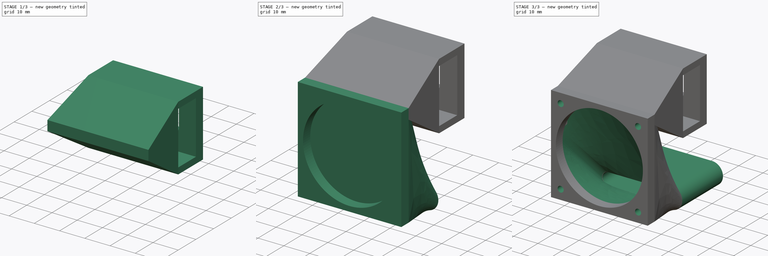
[diagram: build sequence overview — one tinted view per stage of 3, left to right]
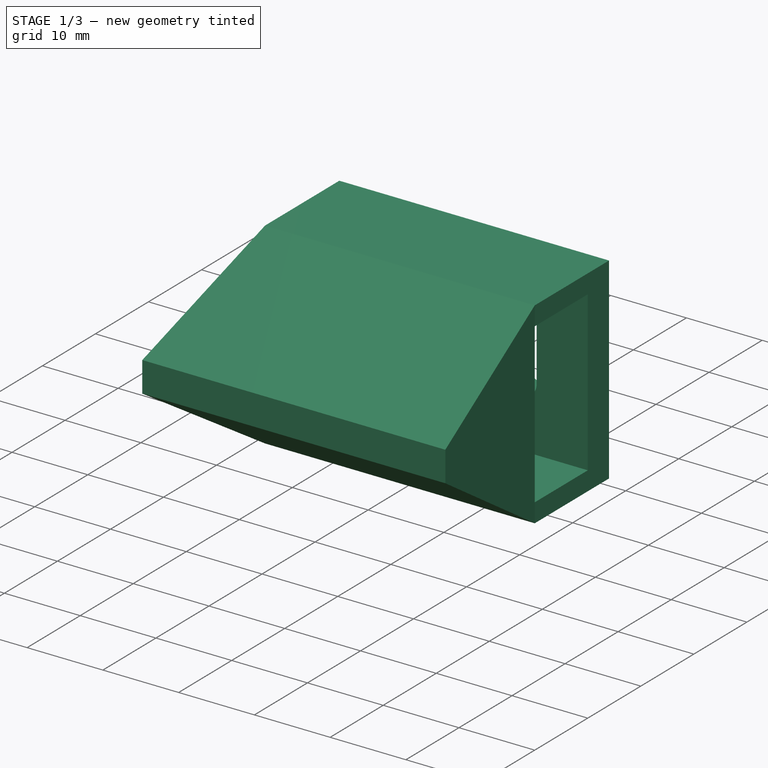
[diagram: stage 1 of 3 — iso view after this stage's code; geometry added in this stage tinted green]
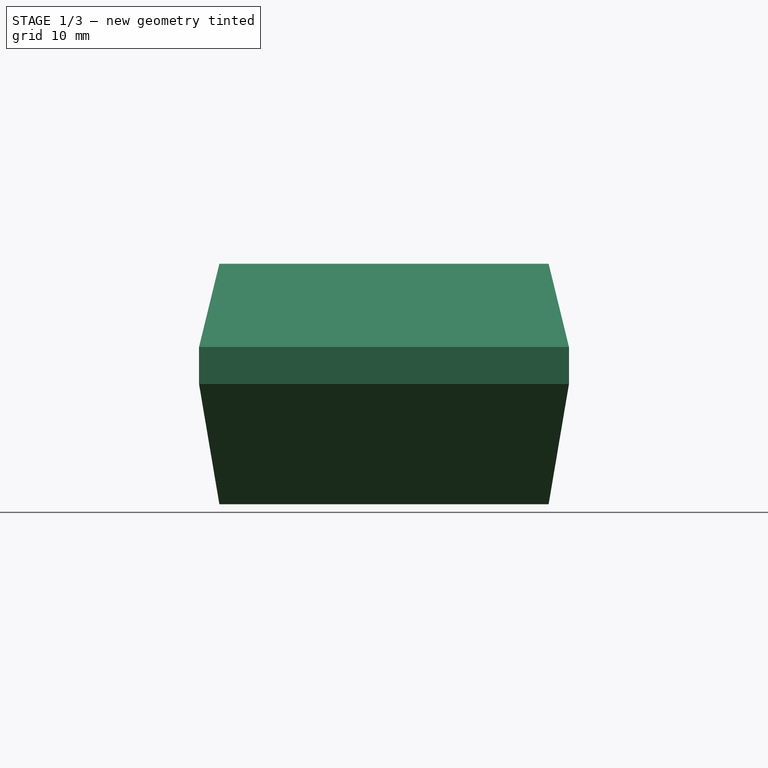
[diagram: stage 1 of 3 — front view after this stage's code; geometry added in this stage tinted green]
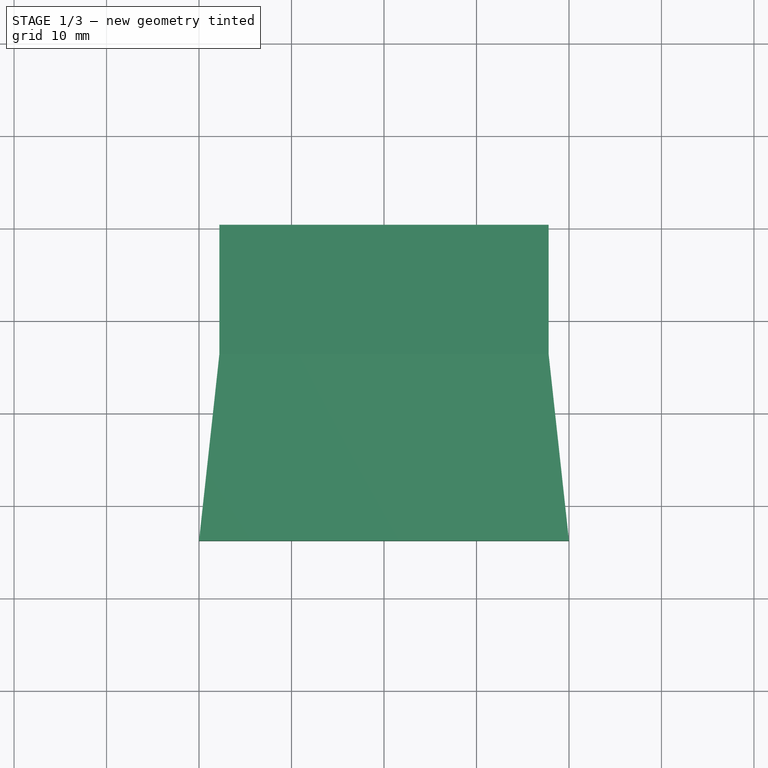
[diagram: stage 1 of 3 — top view after this stage's code; geometry added in this stage tinted green]
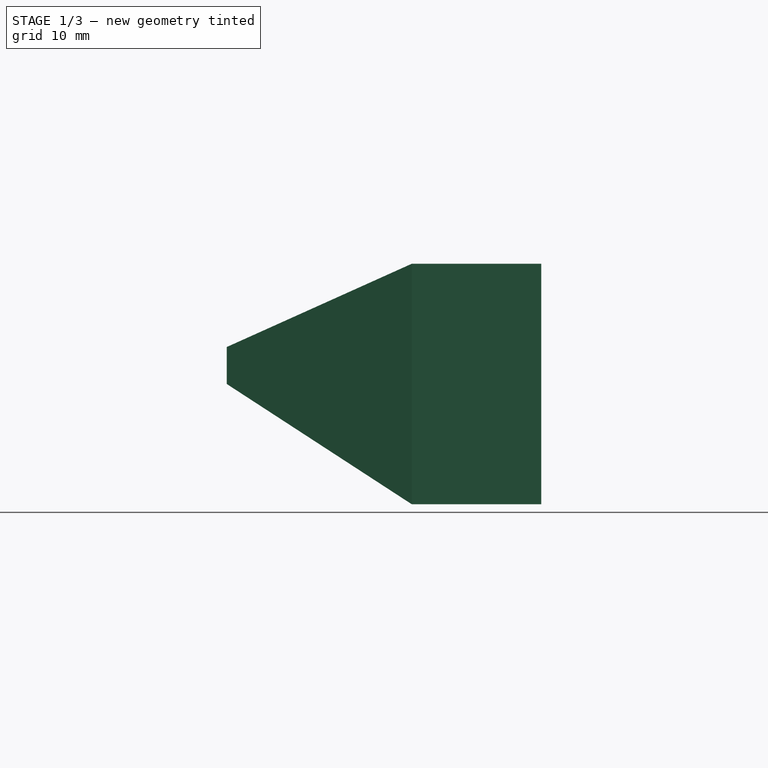
[diagram: stage 1 of 3 — right view after this stage's code; geometry added in this stage tinted green]
FCSTD DOCUMENT  (FreeCAD 0.19R24267 (Git))
Label: FanFunnel
License: All rights reserved
LicenseURL: http://en.wikipedia.org/wiki/All_rights_reserved
objects: Sketcher::SketchObject×11, Spreadsheet::Sheet×4, PartDesign::Pad×4, PartDesign::AdditiveLoft×2, PartDesign::SubtractiveLoft×1, PartDesign::Pocket×1, PartDesign::Body×1
note: 28 computed .brp shape members not serialized (recipe doc carries the construction recipe); baked Part::Feature solids carry a one-line shape summary decoded from their .brp

FEATURE [Sketcher::SketchObject] Sketch  label="Sketch_mountPad"
  FullyConstrained = true
  MapMode = 5
  Placement = pos=(0,0,0) rot=(1,0,0;1.5708rad)
  Support = -> [XZ_Plane]
  expr: Constraints[20] = <<M3>>.M3ThreadThroughholeRadius
  expr: Constraints[21] = <<M3>>.M3ThreadThroughholeRadius
  expr: Constraints[25] = <<Dimensions>>.FanHolderHeight + <<Dimensions>>.HolderHeight
  expr: Constraints[30] = <<Dimensions>>.FanHolderwidth / 2
  expr: Constraints[31] = <<Dimensions>>.HolderBaseToHotheadBottom + <<Dimensions>>.HotheadBottomToHeadTip
  expr: Constraints[22] = <<Dimensions>>.FanFunnelMountScrewHoleHeight
  expr: Constraints[27] = <<Dimensions>>.FanFunnelMountScrewHoleBottomHeight
  expr: Constraints[23] = <<Dimensions>>.FanFunnelMountScrewHoleHeight
  expr: Constraints[24] = <<Dimensions>>.FanHolderwidth
  expr: Constraints[26] = <<Dimensions>>.FanMountSupportWidth + <<M3>>.M3HeadRadius
  expr: Constraints[29] = <<Dimensions>>.FanHolderwidth - <<Dimensions>>.FanMountSupportWidth * 2 - <<M3>>.M3HeadRadius * 2
  expr: Constraints[37] = <<Dimensions>>.FanHolderwidth / 2
  expr: Constraints[35] = <<Dimensions>>.PrintheadMarkerRadius
  sketch-geometry (15):
    g0: LineSegment StartX=-17.8 StartY=59 StartZ=0 EndX=17.8 EndY=59 EndZ=0
    g1: LineSegment StartX=17.8 StartY=59 StartZ=0 EndX=17.8 EndY=33 EndZ=0
    g2: LineSegment StartX=17.8 StartY=33 StartZ=0 EndX=1 EndY=33 EndZ=0
    g3: LineSegment StartX=-17.8 StartY=33 StartZ=0 EndX=-17.8 EndY=59 EndZ=0
    g4: ArcOfCircle CenterX=-9.05 CenterY=54 CenterZ=0 NormalX=0 NormalY=0 NormalZ=1 AngleXU=0 Radius=2 StartAngle=2e-16 EndAngle=3.14159
    g5: ArcOfCircle CenterX=-9.05 CenterY=44 CenterZ=0 NormalX=0 NormalY=0 NormalZ=1 AngleXU=0 Radius=2 StartAngle=3.14159 EndAngle=6.28319
    g6: LineSegment StartX=-11.05 StartY=54 StartZ=0 EndX=-11.05 EndY=44 EndZ=0
    g7: LineSegment StartX=-7.05 StartY=54 StartZ=0 EndX=-7.05 EndY=44 EndZ=0
    g8: ArcOfCircle CenterX=9.05 CenterY=54 CenterZ=0 NormalX=0 NormalY=0 NormalZ=1 AngleXU=0 Radius=2 StartAngle=2e-16 EndAngle=3.14159
    g9: ArcOfCircle CenterX=9.05 CenterY=44 CenterZ=0 NormalX=0 NormalY=0 NormalZ=1 AngleXU=0 Radius=2 StartAngle=3.14159 EndAngle=6.28319
    g10: LineSegment StartX=7.05 StartY=54 StartZ=0 EndX=7.05 EndY=44 EndZ=0
    g11: LineSegment StartX=11.05 StartY=54 StartZ=0 EndX=11.05 EndY=44 EndZ=0
    g12: ArcOfCircle CenterX=-1.5e-15 CenterY=33 CenterZ=0 NormalX=0 NormalY=0 NormalZ=1 AngleXU=0 Radius=1 StartAngle=-9e-16 EndAngle=3.14159
    g13: LineSegment StartX=-1 StartY=33 StartZ=0 EndX=1 EndY=33 EndZ=0
    g14: LineSegment StartX=-1 StartY=33 StartZ=0 EndX=-17.8 EndY=33 EndZ=0
  constraints (42):
    c: Coincident(g0,g1)
    c: Coincident(g1,g2)
    c: Coincident(g14,g3)
    c: Coincident(g3,g0)
    c: Horizontal(g0)
    c: Horizontal(g2)
    c: Vertical(g1)
    c: Vertical(g3)
    c: Tangent(g4,g7) = 1.5708
    c: Tangent(g4,g6) = -1.5708
    c: Tangent(g6,g5) = -1.5708
    c: Tangent(g7,g5) = 1.5708
    c: Vertical(g6)
    c: Equal(g4,g5)
    c: Tangent(g8,g11) = 1.5708
    c: Tangent(g8,g10) = -1.5708
    c: Tangent(g10,g9) = -1.5708
    c: Tangent(g11,g9) = 1.5708
    c: Vertical(g10)
    c: Equal(g8,g9)
    c: Radius(g9) = 2
    c: Radius(g5) = 2
    c: DistanceY(g5,g4) = 10
    c: DistanceY(g9,g8) = 10
    c: DistanceX(g14,g1) = 35.6
    c: DistanceY(g1,g1) = 26
    c: DistanceX(g9,g1) = 8.75
    c: DistanceY(g1,g9) = 11
    c: Horizontal(g9,g5)
    c: DistanceX(g5,g9) = 18.1
    c: DistanceX(g-1,g1) = 17.8
    c: DistanceY(g-1,g1) = 33
    c: Coincident(g13,g12)
    c: Coincident(g13,g12)
    c: Horizontal(g13)
    c: Radius(g12) = 1
    c: Horizontal(g12,g12)
    c: DistanceX(g12,g1) = 17.8
    c: Horizontal(g12,g1)
    c: PointOnObject(g2,g12)
    c: PointOnObject(g14,g12)
    c: Tangent(g2,g14)
FEATURE [Spreadsheet::Sheet] Spreadsheet  label="M3"
  cells = A1=M3ThreadRadius; B1(M3ThreadRadius)==1.25mm; A2=M3HeadRadius; B2(M3HeadRadius)==2.75mm; A3=M3HeadHeight; B3(M3HeadHeight)==3mm; A4=M3NutFlatToFlat_S; B4(M3NutFlatToFlat_S)==5.5mm; A5=M3NutThickness; B5(M3NutThickness)==2.4mm; A6=M3ThreadThroughholeRadius; B6(M3ThreadThroughholeRadius)==2mm
FEATURE [Spreadsheet::Sheet] Spreadsheet001  label="Nema17"
  cells = A1=BodyWidth; B1(BodyWidth)==42.3mm; A2=BodyLength; B2(BodyLength)==42.3mm; A3=BodyHeight34mm; B3(BodyHeight34mm)==34mm; A4=ScrewSeparation; B4(ScrewSeparation)==31mm; A5=DamperSupportHeight; B5(DamperSupportHeight)==2mm; A6=DamperSupportDiameter; B6(DamperSupportDiameter)==22mm; A7=ShaftLength; B7(ShaftLength)==24mm; A8=ShaftDiameter; B8(ShaftDiameter)==5mm; A9=PlugHeight; B9(PlugHeight)==12mm; A10=PlugWidth; B10(PlugWidth)==16mm; A11=PlugLength; B11(PlugLength)==6.5mm; A12=BodyInsideTaper; B12(BodyInsideTaper)==34mm
FEATURE [Spreadsheet::Sheet] Spreadsheet003  label="Dimensions"
  cells = A1=HolderDepth; B1(HolderDepth)==60mm; A2=HolderDepthToSlope; B2(HolderDepthToSlope)==(HolderDepth - ScrewDomeRadius - <<Nema17>>.ScrewSeparation) / 2; A3=HolderHeight; B3(HolderHeight)==6mm; A4=HolderHeightUnderRadiator; B4(HolderHeightUnderRadiator)==4mm; A5=HolderHeightToScrewholeCentre; B5(HolderHeightToScrewholeCentre)==9mm; A6=HolderWidth; B6(HolderWidth)==10mm; A7=ScrewDomeRadius; B7(ScrewDomeRadius)==3.5mm; A8=FanHolderHeight; B8(FanHolderHeight)==20mm; A9=FanHolderDepth; B9(FanHolderDepth)==4mm; A10=FanHolderwidth; B10(FanHolderwidth)==(HolderWidth + PrintheadToGrabberRight - FanMountShiftFromSide) * 2; A11=GrabberDepth; B11(GrabberDepth)==18mm; A12=GrabberLength; B12(GrabberLength)==54mm; A13=ProbeHolderOuterRadius; B13(ProbeHolderOuterRadius)==14mm; A14=ProbeHolderToGrabberRight; B14(ProbeHolderToGrabberRight)==GrabberLength - ProbeHolderOuterRadius + (ProbeHolderOuterRadius - ProbeHolderInnerRadius) / 2; A15=ProbeHolderToGrabberDepth; B15(ProbeHolderToGrabberDepth)==GrabberDepth; A16=ProbeHolderInnerRadius; B16(ProbeHolderInnerRadius)==10mm; A17=ProbeHolderHeight; B17(ProbeHolderHeight)==13mm; A18=FanMountScrewHeightFromFront; B18(FanMountScrewHeightFromFront)==15mm; A19=FanMountScrew1FromSide; B19(FanMountScrew1FromSide)==HolderWidth - FanMountShiftFromSide - FanMountSupportWidth - <<M3>>.M3HeadRadius; A20=FanMountScrew2FromSide; B20(FanMountScrew2FromSide)==HolderWidth - FanHolderwidth + FanMountSupportWidth + <<M3>>.M3HeadRadius - FanMountShiftFromSide; A21=PrintheadToHolderBack; B21(PrintheadToHolderBack)==25mm; A22=PrintheadMarkerRadius; B22(PrintheadMarkerRadius)==1mm; A23=PrintheadToGrabberRight; B23(PrintheadToGrabberRight)==20mm - HolderWidth; A24=PrintheadMarkerDepth; B24(PrintheadMarkerDepth)==1mm; A25=FanMountSupportDepth; B25(FanMountSupportDepth)==HolderDepth - HolderDepthToSlope; A26=FanMountSupportHeight; B26(FanMountSupportHeight)==FanHolderHeight / 2; A27=FanMountSupportWidth; B27(FanMountSupportWidth)==6mm; A28=FanMountShiftFromSide; B28(FanMountShiftFromSide)==2.2mm; A29=HolderBaseToHotheadBottom; B29(HolderBaseToHotheadBottom)==23mm; A30=HotheadBottomToHeadTip; B30(HotheadBottomToHeadTip)==10mm; A31=FanFunnelMountScrewHoleHeight; B31(FanFunnelMountScrewHoleHeight)==10mm; A32=FanFunnelMountScrewHoleBottomHeight; B32(FanFunnelMountScrewHoleBottomHeight)==HolderHeight + FanHolderHeight / 2 - FanFunnelMountScrewHoleHeight / 2; A33=FanHolderToFunnerBeamThickness; B33(FanHolderToFunnerBeamThickness)==2.5mm; A34=FanBeamLength; B34(FanBeamLength)==10mm; A35=VentThickness; B35(VentThickness)==2mm; A36=VentOpening; B36(VentOpening)==26mm; A37=VentInnerRadius; B37(VentInnerRadius)==2.5mm; A38=VentUnderhangLength; B38(VentUnderhangLength)==FanBeamLength + FanHolderDepth + 10mm
FEATURE [PartDesign::Pad] Pad  label="Pad_mountPad"
  Direction = (1,1,1)
  Length = 4
  Length2 = 100
  Placement = pos=(0,0,0) rot=(1,0,0;1.5708rad)
  Profile = -> Sketch
  Type = 0
  expr: Length = <<Dimensions>>.FanHolderDepth
FEATURE [Sketcher::SketchObject] Sketch001  label="Sketch_BeamToFanVent"
  FullyConstrained = true
  MapMode = 5
  Placement = pos=(0,-4,0) rot=(1,0,0;1.5708rad)
  Support = -> [Pad]
  expr: Constraints[27] = <<Dimensions>>.HotheadBottomToHeadTip + <<Dimensions>>.HolderBaseToHotheadBottom
  expr: Constraints[29] = <<Dimensions>>.FanHolderToFunnerBeamThickness
  expr: Constraints[26] = <<Dimensions>>.FanHolderwidth
  expr: Constraints[31] = <<Dimensions>>.FanHolderToFunnerBeamThickness
  expr: Constraints[30] = <<Dimensions>>.FanHolderToFunnerBeamThickness
  expr: Constraints[28] = <<Dimensions>>.HotheadBottomToHeadTip + <<Dimensions>>.HolderBaseToHotheadBottom + <<Dimensions>>.HolderHeight + <<Dimensions>>.FanHolderHeight
  expr: Constraints[25] = <<Dimensions>>.FanHolderwidth
  sketch-geometry (12):
    g0: LineSegment StartX=1.25 StartY=35.5 StartZ=0 EndX=17.8 EndY=35.5 EndZ=0
    g1: LineSegment StartX=17.8 StartY=35.5 StartZ=0 EndX=17.8 EndY=33 EndZ=0
    g2: LineSegment StartX=17.8 StartY=33 StartZ=0 EndX=-17.8 EndY=33 EndZ=0
    g3: LineSegment StartX=-17.8 StartY=33 StartZ=0 EndX=-17.8 EndY=35.5 EndZ=0
    g4: LineSegment StartX=-17.8 StartY=35.5 StartZ=0 EndX=-1.25 EndY=35.5 EndZ=0
    g5: LineSegment StartX=-1.25 StartY=35.5 StartZ=0 EndX=-1.25 EndY=56.5 EndZ=0
    g6: LineSegment StartX=-1.25 StartY=56.5 StartZ=0 EndX=-17.8 EndY=56.5 EndZ=0
    g7: LineSegment StartX=-17.8 StartY=56.5 StartZ=0 EndX=-17.8 EndY=59 EndZ=0
    g8: LineSegment StartX=1.25 StartY=35.5 StartZ=0 EndX=1.25 EndY=56.5 EndZ=0
    g9: LineSegment StartX=1.25 StartY=56.5 StartZ=0 EndX=17.8 EndY=56.5 EndZ=0
    g10: LineSegment StartX=17.8 StartY=56.5 StartZ=0 EndX=17.8 EndY=59 EndZ=0
    g11: LineSegment StartX=17.8 StartY=59 StartZ=0 EndX=-17.8 EndY=59 EndZ=0
  constraints (32):
    c: Coincident(g0,g1)
    c: Coincident(g1,g2)
    c: Coincident(g2,g3)
    c: Vertical(g3)
    c: Coincident(g3,g4)
    c: Horizontal(g4)
    c: Coincident(g4,g5)
    c: Coincident(g5,g6)
    c: Coincident(g6,g7)
    c: Coincident(g0,g8)
    c: Vertical(g8)
    c: Coincident(g8,g9)
    c: Coincident(g9,g10)
    c: Coincident(g10,g11)
    c: Coincident(g11,g7)
    c: Horizontal(g11)
    c: Vertical(g1)
    c: Horizontal(g2)
    c: Horizontal(g9)
    c: Vertical(g10)
    c: Vertical(g7)
    c: Symmetric(g5,g8,g-2)
    c: Symmetric(g4,g0,g-2)
    c: Symmetric(g3,g0,g-2)
    c: Symmetric(g9,g6,g-2)
    c: DistanceX(g2,g2) = 35.6
    c: DistanceX(g11,g11) = 35.6
    c: DistanceY(g-1,g1) = 33
    c: DistanceY(g-1,g10) = 59
    c: DistanceY(g10,g10) = 2.5
    c: DistanceY(g1,g1) = 2.5
    c: DistanceX(g4,g0) = 2.5
FEATURE [Spreadsheet::Sheet] Spreadsheet004  label="Fan4010"
  cells = A1=FaceWidth; B1(FaceWidth)==40mm; A2=FaceLength; B2(FaceLength)==40mm; A3=FanOpeningRadius; B3(FanOpeningRadius)==18mm; A4=ScrewToSide; B4(ScrewToSide)==4mm; A5=FanOpeningOffset; B5(FanOpeningOffset)==0mm; A6=FanOpeningThickness; B6(FanOpeningThickness)==4mm
FEATURE [PartDesign::Pad] Pad001  label="Pad_BeamToFanVent"
  BaseFeature = -> Pad
  Direction = (1,1,1)
  Length = 10
  Length2 = 100
  Placement = pos=(0,0,0) rot=(1,0,0;1.5708rad)
  Profile = -> Sketch001
  Type = 0
  expr: Length = <<Dimensions>>.FanBeamLength
FEATURE [Sketcher::SketchObject] Sketch003  label="Sketch_MountSideToFanFace"
  FullyConstrained = true
  MapMode = 5
  Placement = pos=(0,-14,-1e-16) rot=(1,0,0;1.5708rad)
  Support = -> [Pad001]
  expr: Constraints[11] = <<Dimensions>>.FanHolderHeight + <<Dimensions>>.HolderHeight
  expr: Constraints[10] = <<Dimensions>>.FanHolderwidth / 2
  expr: Constraints[9] = <<Dimensions>>.FanHolderwidth
  expr: Constraints[8] = <<Dimensions>>.HotheadBottomToHeadTip + <<Dimensions>>.HolderBaseToHotheadBottom + <<Dimensions>>.HolderHeight + <<Dimensions>>.FanHolderHeight
  sketch-geometry (4):
    g0: LineSegment StartX=-17.8 StartY=59 StartZ=0 EndX=17.8 EndY=59 EndZ=0
    g1: LineSegment StartX=17.8 StartY=59 StartZ=0 EndX=17.8 EndY=33 EndZ=0
    g2: LineSegment StartX=17.8 StartY=33 StartZ=0 EndX=-17.8 EndY=33 EndZ=0
    g3: LineSegment StartX=-17.8 StartY=33 StartZ=0 EndX=-17.8 EndY=59 EndZ=0
  constraints (12):
    c: Coincident(g0,g1)
    c: Coincident(g1,g2)
    c: Coincident(g2,g3)
    c: Coincident(g3,g0)
    c: Horizontal(g0)
    c: Horizontal(g2)
    c: Vertical(g1)
    c: Vertical(g3)
    c: DistanceY(g-1,g0) = 59
    c: DistanceX(g0,g0) = 35.6
    c: DistanceX(g-1,g1) = 17.8
    c: DistanceY(g1,g1) = 26
FEATURE [Sketcher::SketchObject] Sketch005  label="Sketch_MountToFanFaceSide"
  FullyConstrained = true
  MapMode = 5
  Placement = pos=(0,-34,-5e-15) rot=(1,0,0;1.5708rad)
  expr: Constraints[11] = <<Fan4010>>.FaceWidth / 2
  expr: Constraints[10] = <<Dimensions>>.HotheadBottomToHeadTip + <<Fan4010>>.FaceLength
  expr: Constraints[9] = <<Fan4010>>.ScrewToSide
  expr: Constraints[8] = <<Fan4010>>.FaceWidth
  sketch-geometry (4):
    g0: LineSegment StartX=-20 StartY=50 StartZ=0 EndX=20 EndY=50 EndZ=0
    g1: LineSegment StartX=20 StartY=50 StartZ=0 EndX=20 EndY=46 EndZ=0
    g2: LineSegment StartX=20 StartY=46 StartZ=0 EndX=-20 EndY=46 EndZ=0
    g3: LineSegment StartX=-20 StartY=46 StartZ=0 EndX=-20 EndY=50 EndZ=0
  constraints (12):
    c: Coincident(g0,g1)
    c: Coincident(g1,g2)
    c: Coincident(g2,g3)
    c: Coincident(g3,g0)
    c: Horizontal(g0)
    c: Horizontal(g2)
    c: Vertical(g1)
    c: Vertical(g3)
    c: DistanceX(g0,g0) = 40
    c: DistanceY(g1,g1) = 4
    c: DistanceY(g-1,g0) = 50
    c: DistanceX(g-1,g1) = 20
FEATURE [PartDesign::AdditiveLoft] AdditiveLoft  label="AdditiveLoft_TopMount"
  BaseFeature = -> Pad001
  Closed = true
  Placement = pos=(0,0,0) rot=(1,0,0;1.5708rad)
  Profile = -> Sketch003
  Ruled = false
  Sections = -> [Sketch005]
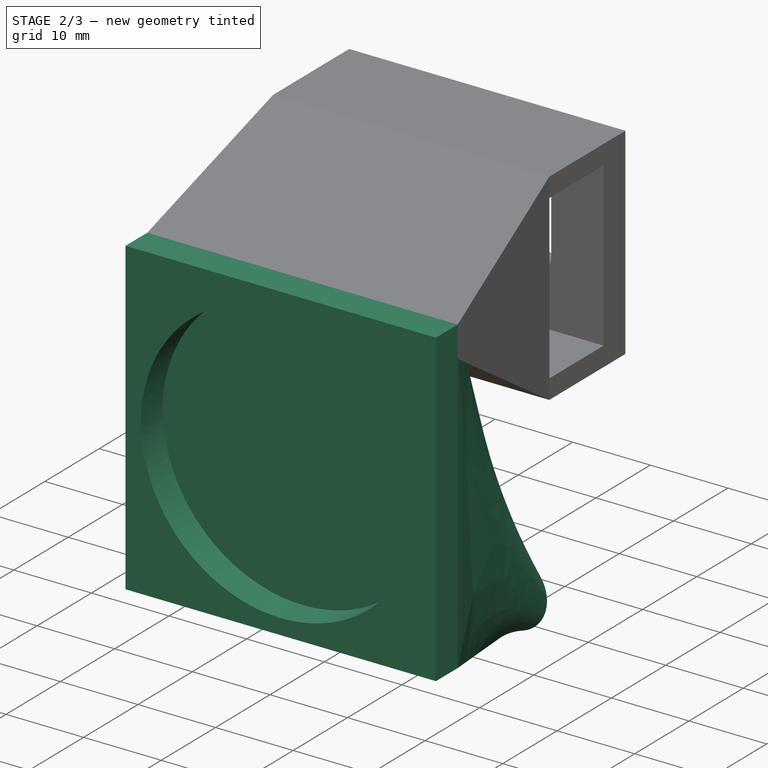
[diagram: stage 2 of 3 — iso view after this stage's code; geometry added in this stage tinted green]
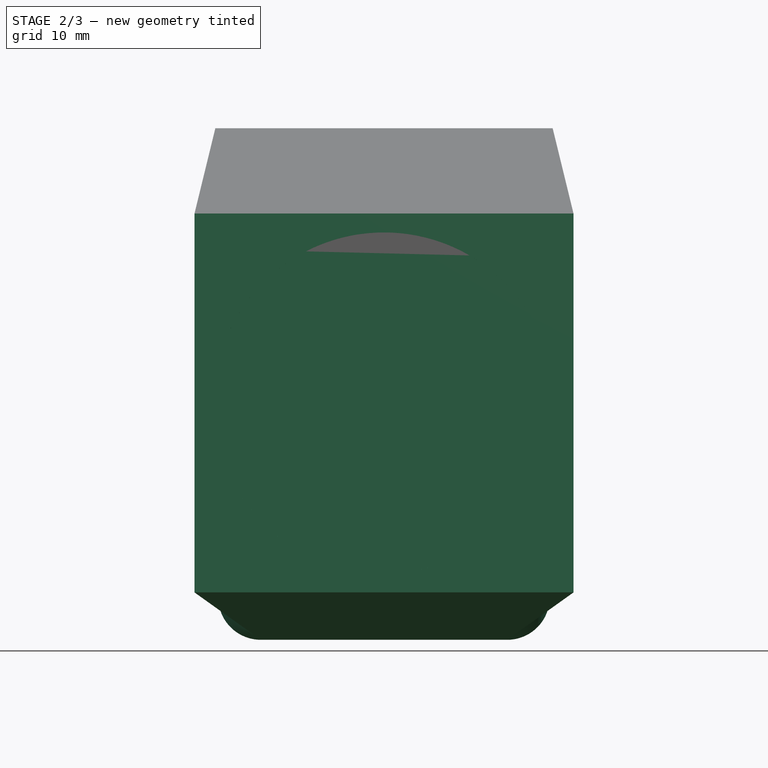
[diagram: stage 2 of 3 — front view after this stage's code; geometry added in this stage tinted green]
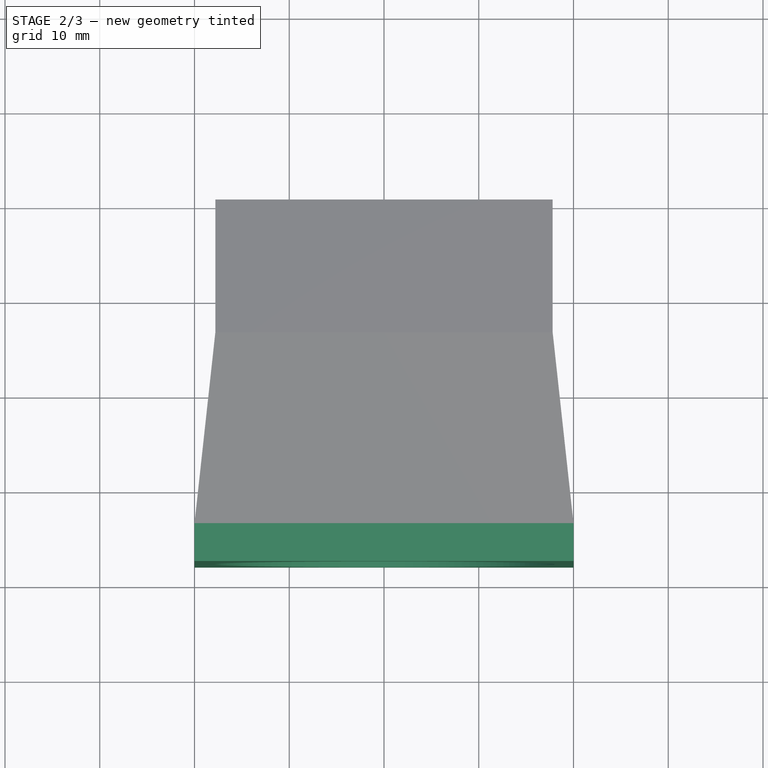
[diagram: stage 2 of 3 — top view after this stage's code; geometry added in this stage tinted green]
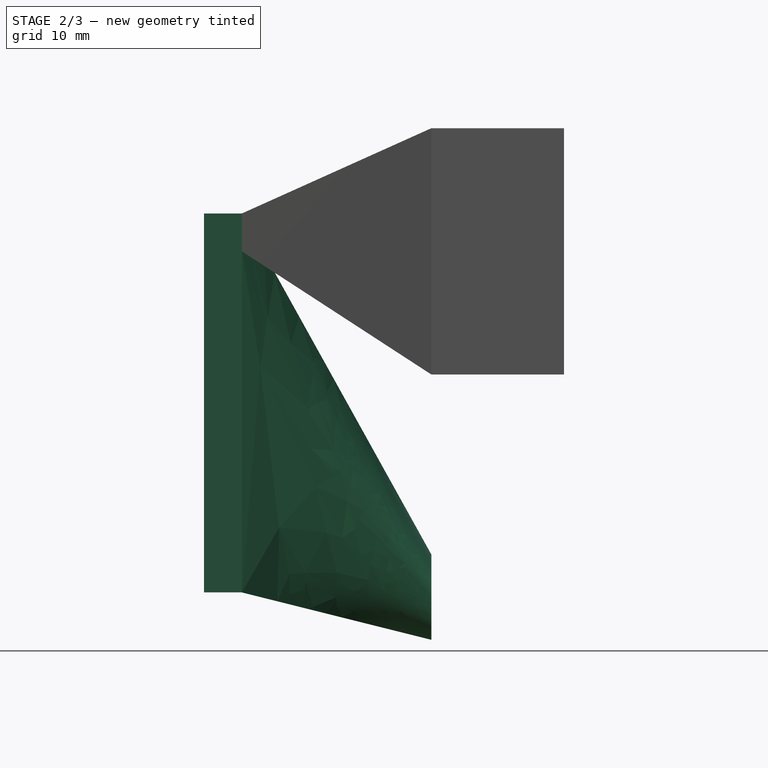
[diagram: stage 2 of 3 — right view after this stage's code; geometry added in this stage tinted green]
FEATURE [Sketcher::SketchObject] Sketch006  label="Sketch_FanFace"
  FullyConstrained = false
  MapMode = 5
  Placement = pos=(0,-34,7.5e-15) rot=(1,0,0;1.5708rad)
  Support = -> [AdditiveLoft]
  expr: Constraints[14] = <<Fan4010>>.FaceLength / 2 + <<Dimensions>>.HotheadBottomToHeadTip
  expr: Constraints[9] = <<Fan4010>>.FaceWidth / 2
  expr: Constraints[13] = <<Fan4010>>.FanOpeningRadius
  expr: Constraints[11] = <<Dimensions>>.HotheadBottomToHeadTip
  expr: Constraints[10] = <<Fan4010>>.FaceLength
  expr: Constraints[8] = <<Fan4010>>.FaceWidth
  sketch-geometry (6):
    g0: LineSegment StartX=-20 StartY=50 StartZ=0 EndX=20 EndY=50 EndZ=0
    g1: LineSegment StartX=20 StartY=50 StartZ=0 EndX=20 EndY=10 EndZ=0
    g2: LineSegment StartX=20 StartY=10 StartZ=0 EndX=-20 EndY=10 EndZ=0
    g3: LineSegment StartX=-20 StartY=10 StartZ=0 EndX=-20 EndY=50 EndZ=0
    g4: Circle CenterX=0 CenterY=30 CenterZ=0 NormalX=0 NormalY=0 NormalZ=1 AngleXU=0 Radius=18
    g5: LineSegment StartX=0 StartY=30 StartZ=0 EndX=-13.868 EndY=30 EndZ=0
  constraints (17):
    c: Coincident(g0,g1)
    c: Coincident(g1,g2)
    c: Coincident(g2,g3)
    c: Coincident(g3,g0)
    c: Horizontal(g0)
    c: Horizontal(g2)
    c: Vertical(g1)
    c: Vertical(g3)
    c: DistanceX(g0,g0) = 40
    c: DistanceX(g-1,g1) = 20
    c: DistanceY(g1,g1) = 40
    c: DistanceY(g-1,g1) = 10
    c: PointOnObject(g4,g-2)
    c: Radius(g4) = 18
    c: DistanceY(g-1,g4) = 30
    c: Coincident(g5,g4)
    c: Horizontal(g5)
FEATURE [PartDesign::Pad] Pad002  label="Pad_FanFace"
  BaseFeature = -> AdditiveLoft
  Direction = (1,1,1)
  Length = 4
  Length2 = 100
  Placement = pos=(0,0,0) rot=(1,0,0;1.5708rad)
  Profile = -> Sketch006
  Type = 0
  expr: Length = <<Fan4010>>.FanOpeningThickness
FEATURE [Sketcher::SketchObject] Sketch007  label="Sketch_FanFaceScrews"
  FullyConstrained = true
  MapMode = 5
  Placement = pos=(0,-38,-5.2e-15) rot=(1,0,0;1.5708rad)
  Support = -> [Pad002]
  expr: Constraints[11] = <<Fan4010>>.FaceLength - <<Fan4010>>.ScrewToSide * 2
  expr: Constraints[7] = <<M3>>.M3ThreadRadius
  expr: Constraints[6] = <<M3>>.M3ThreadRadius
  expr: Constraints[4] = <<M3>>.M3ThreadRadius
  expr: Constraints[3] = <<Dimensions>>.HotheadBottomToHeadTip + <<Fan4010>>.FaceLength - <<Fan4010>>.ScrewToSide
  expr: Constraints[5] = <<M3>>.M3ThreadRadius
  expr: Constraints[2] = <<Dimensions>>.HotheadBottomToHeadTip + <<Fan4010>>.FaceLength - <<Fan4010>>.ScrewToSide
  expr: Constraints[1] = <<Fan4010>>.FaceWidth / 2 - <<Fan4010>>.ScrewToSide
  expr: Constraints[0] = <<Fan4010>>.FaceWidth / 2 - <<Fan4010>>.ScrewToSide
  sketch-geometry (4):
    g0: Circle CenterX=-16 CenterY=46 CenterZ=0 NormalX=0 NormalY=0 NormalZ=1 AngleXU=0 Radius=1.25
    g1: Circle CenterX=16 CenterY=46 CenterZ=0 NormalX=0 NormalY=0 NormalZ=1 AngleXU=0 Radius=1.25
    g2: Circle CenterX=-16 CenterY=14 CenterZ=0 NormalX=0 NormalY=0 NormalZ=1 AngleXU=0 Radius=1.25
    g3: Circle CenterX=16 CenterY=14 CenterZ=0 NormalX=0 NormalY=0 NormalZ=1 AngleXU=0 Radius=1.25
  constraints (12):
    c: DistanceX(g-1,g1) = 16
    c: DistanceX(g0,g-1) = 16
    c: DistanceY(g-1,g1) = 46
    c: DistanceY(g-1,g0) = 46
    c: Radius(g1) = 1.25
    c: Radius(g0) = 1.25
    c: Radius(g3) = 1.25
    c: Radius(g2) = 1.25
    c: Vertical(g0,g2)
    c: Vertical(g3,g1)
    c: Horizontal(g3,g2)
    c: DistanceY(g3,g1) = 32
FEATURE [Sketcher::SketchObject] Sketch009  label="Sketch_VentEndFunnel"
  FullyConstrained = true
  MapMode = 5
  Placement = pos=(0,-14,-1e-16) rot=(1,0,0;1.5708rad)
  Support = -> [Pad001]
  expr: Constraints[10] = <<Dimensions>>.VentThickness + <<Dimensions>>.HotheadBottomToHeadTip / 2
  expr: Constraints[9] = <<Dimensions>>.VentOpening / 2
  expr: Constraints[8] = <<Dimensions>>.VentOpening
  expr: Constraints[7] = <<Dimensions>>.VentInnerRadius
  sketch-geometry (5):
    g0: ArcOfCircle CenterX=-13 CenterY=9.5 CenterZ=0 NormalX=0 NormalY=0 NormalZ=1 AngleXU=0 Radius=2.5 StartAngle=1.5708 EndAngle=4.71239
    g1: ArcOfCircle CenterX=13 CenterY=9.5 CenterZ=0 NormalX=0 NormalY=0 NormalZ=1 AngleXU=0 Radius=2.5 StartAngle=4.71239 EndAngle=7.85398
    g2: LineSegment StartX=-13 StartY=7 StartZ=0 EndX=13 EndY=7 EndZ=0
    g3: LineSegment StartX=-13 StartY=12 StartZ=0 EndX=13 EndY=12 EndZ=0
    g4: GeomPoint X=13 Y=9.5 Z=0
  constraints (11):
    c: Tangent(g0,g3) = 1.5708
    c: Tangent(g0,g2) = -1.5708
    c: Tangent(g2,g1) = -1.5708
    c: Tangent(g3,g1) = 1.5708
    c: Horizontal(g2)
    c: Equal(g0,g1)
    c: Coincident(g4,g1)
    c: Radius(g1) = 2.5
    c: DistanceX(g0,g1) = 26
    c: DistanceX(g-1,g1) = 13
    c: DistanceY(g-1,g1) = 7
FEATURE [Sketcher::SketchObject] Sketch010  label="Sketch_VentFanOpening"
  FullyConstrained = true
  MapMode = 5
  Placement = pos=(0,-34,-4.7e-15) rot=(-1,0,0;1.5708rad)
  Support = -> [Pad002]
  expr: Constraints[2] = <<Dimensions>>.HotheadBottomToHeadTip + <<Fan4010>>.FaceLength / 2
  expr: Constraints[1] = <<Fan4010>>.FanOpeningRadius
  sketch-geometry (1):
    g0: Circle CenterX=0 CenterY=-30 CenterZ=0 NormalX=0 NormalY=0 NormalZ=1 AngleXU=0 Radius=18
  constraints (3):
    c: PointOnObject(g0,g-2)
    c: Radius(g0) = 18
    c: DistanceY(g0,g-1) = 30
FEATURE [Sketcher::SketchObject] Sketch011  label="Sketch_VentFanOuterFace"
  FullyConstrained = true
  MapMode = 5
  Placement = pos=(0,-34,-4.7e-15) rot=(-1,0,0;1.5708rad)
  Support = -> [Pad002]
  expr: Constraints[11] = <<Fan4010>>.FaceWidth / 2
  expr: Constraints[10] = <<Fan4010>>.FaceWidth
  expr: Constraints[9] = <<Dimensions>>.HotheadBottomToHeadTip
  expr: Constraints[8] = <<Fan4010>>.FaceLength
  sketch-geometry (4):
    g0: LineSegment StartX=-20 StartY=-10 StartZ=0 EndX=20 EndY=-10 EndZ=0
    g1: LineSegment StartX=20 StartY=-10 StartZ=0 EndX=20 EndY=-50 EndZ=0
    g2: LineSegment StartX=20 StartY=-50 StartZ=0 EndX=-20 EndY=-50 EndZ=0
    g3: LineSegment StartX=-20 StartY=-50 StartZ=0 EndX=-20 EndY=-10 EndZ=0
  constraints (12):
    c: Coincident(g0,g1)
    c: Coincident(g1,g2)
    c: Coincident(g2,g3)
    c: Coincident(g3,g0)
    c: Horizontal(g0)
    c: Horizontal(g2)
    c: Vertical(g1)
    c: Vertical(g3)
    c: DistanceY(g1,g1) = 40
    c: DistanceY(g0,g-1) = 10
    c: DistanceX(g0,g0) = 40
    c: DistanceX(g0,g-1) = 20
FEATURE [Sketcher::SketchObject] Sketch012  label="Sketch_VentEndOuter"
  FullyConstrained = true
  MapMode = 5
  Placement = pos=(0,-14,-1e-16) rot=(1,0,0;1.5708rad)
  Support = -> [Pad001]
  expr: Constraints[9] = <<Dimensions>>.HotheadBottomToHeadTip / 2
  expr: Constraints[8] = <<Dimensions>>.VentOpening / 2
  expr: Constraints[7] = <<Dimensions>>.VentOpening
  expr: Constraints[6] = <<Dimensions>>.VentInnerRadius + <<Dimensions>>.VentThickness
  sketch-geometry (4):
    g0: ArcOfCircle CenterX=-13 CenterY=9.5 CenterZ=0 NormalX=0 NormalY=0 NormalZ=1 AngleXU=0 Radius=4.5 StartAngle=1.5708 EndAngle=4.71239
    g1: ArcOfCircle CenterX=13 CenterY=9.5 CenterZ=0 NormalX=0 NormalY=0 NormalZ=1 AngleXU=0 Radius=4.5 StartAngle=4.71239 EndAngle=7.85398
    g2: LineSegment StartX=-13 StartY=5 StartZ=0 EndX=13 EndY=5 EndZ=0
    g3: LineSegment StartX=-13 StartY=14 StartZ=0 EndX=13 EndY=14 EndZ=0
  constraints (10):
    c: Tangent(g0,g3) = 1.5708
    c: Tangent(g0,g2) = -1.5708
    c: Tangent(g2,g1) = -1.5708
    c: Tangent(g3,g1) = 1.5708
    c: Horizontal(g2)
    c: Equal(g0,g1)
    c: Radius(g1) = 4.5
    c: DistanceX(g0,g1) = 26
    c: DistanceX(g-1,g1) = 13
    c: DistanceY(g-1,g1) = 5
FEATURE [PartDesign::AdditiveLoft] AdditiveLoft001  label="AdditiveLoft_VentOuter"
  BaseFeature = -> Pad002
  Closed = false
  Placement = pos=(0,0,0) rot=(1,0,0;1.5708rad)
  Profile = -> Sketch012
  Ruled = false
  Sections = -> [Sketch011]
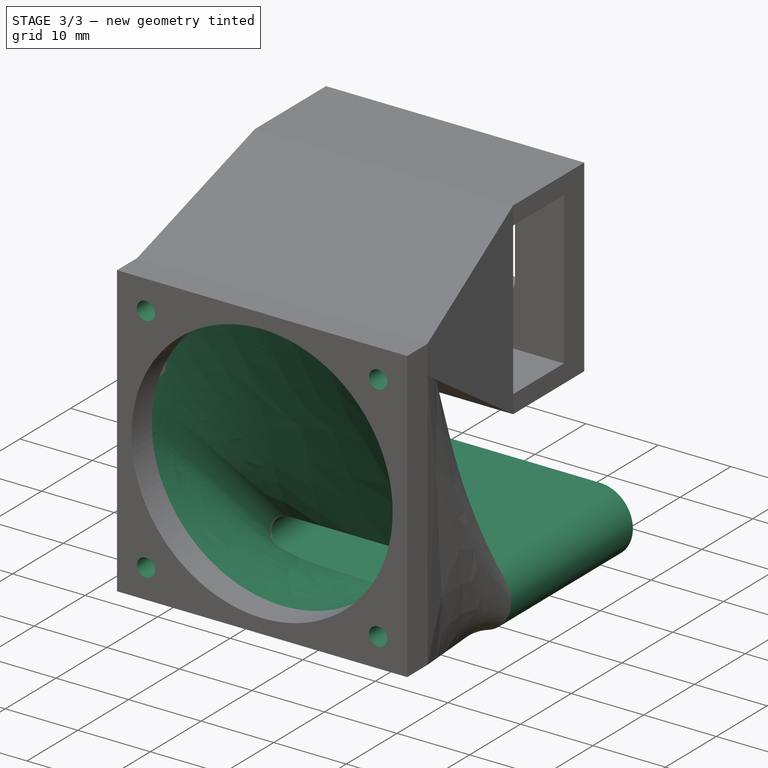
[diagram: stage 3 of 3 — iso view after this stage's code; geometry added in this stage tinted green]
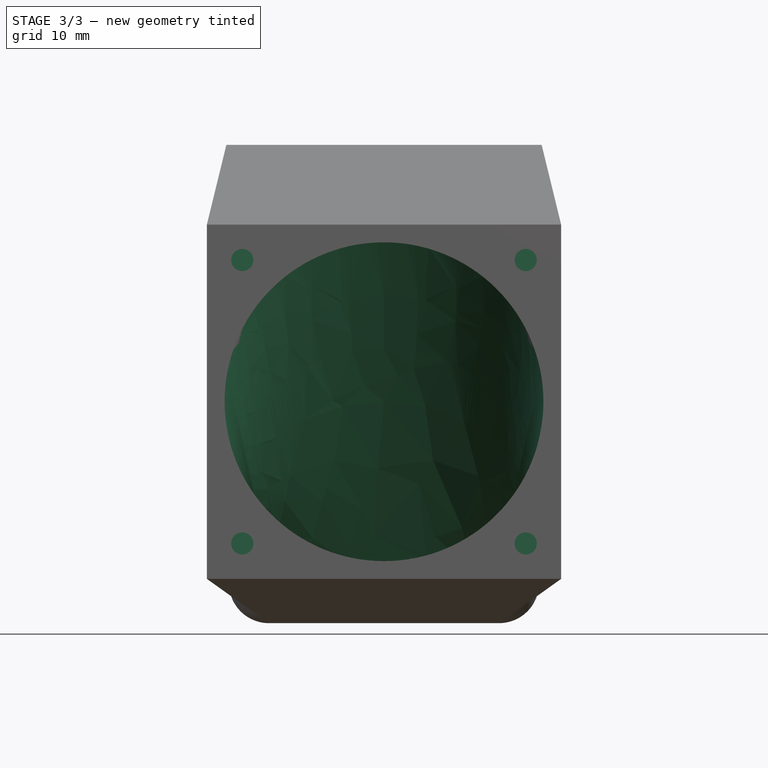
[diagram: stage 3 of 3 — front view after this stage's code; geometry added in this stage tinted green]
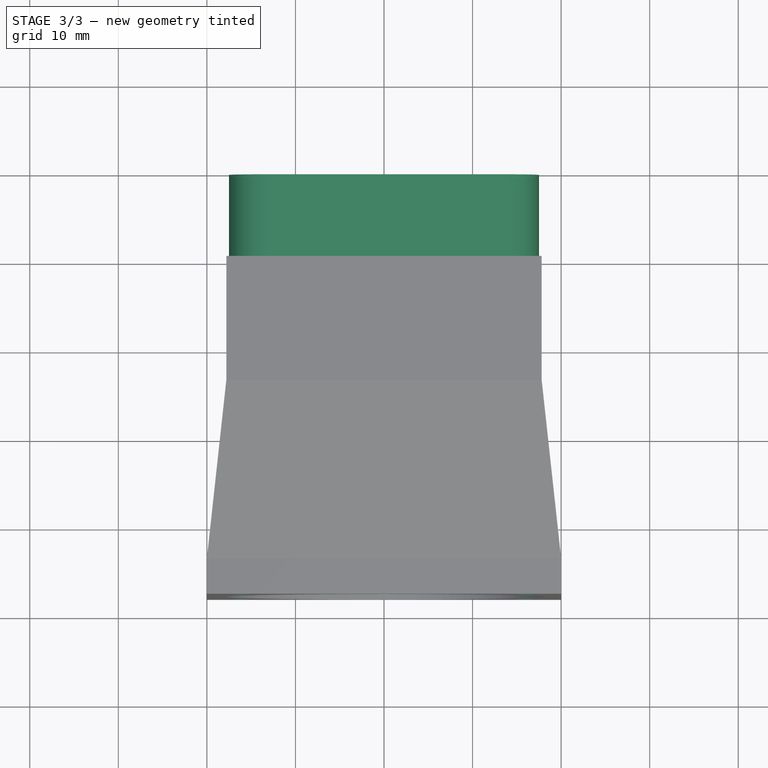
[diagram: stage 3 of 3 — top view after this stage's code; geometry added in this stage tinted green]
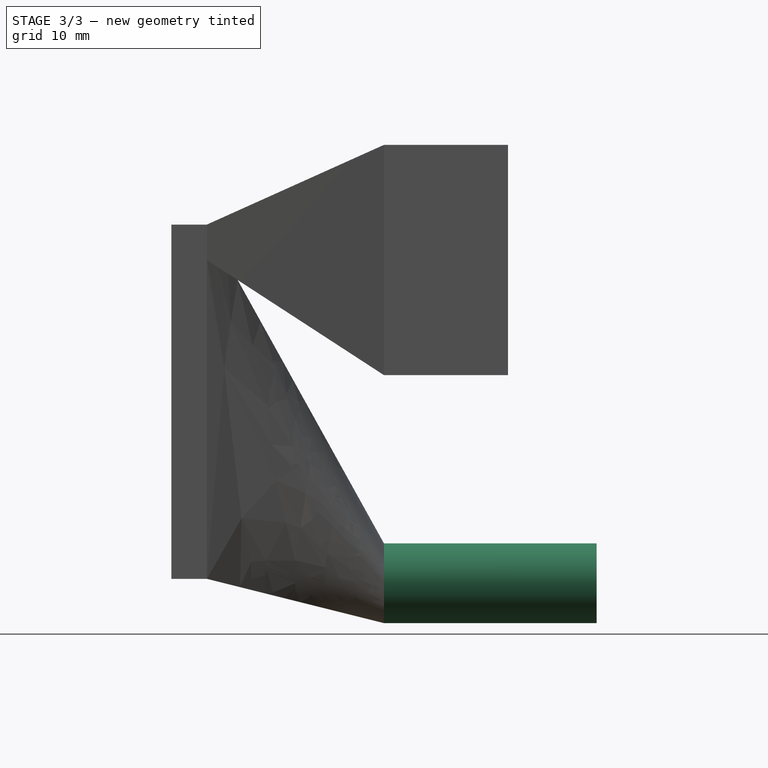
[diagram: stage 3 of 3 — right view after this stage's code; geometry added in this stage tinted green]
FEATURE [PartDesign::SubtractiveLoft] SubtractiveLoft  label="SubtractiveLoft_VentInner"
  BaseFeature = -> AdditiveLoft001
  Closed = false
  Placement = pos=(0,0,0) rot=(1,0,0;1.5708rad)
  Profile = -> Sketch009
  Ruled = false
  Sections = -> [Sketch010]
FEATURE [PartDesign::Pocket] Pocket  label="Pocket_FanFaceScrews"
  BaseFeature = -> SubtractiveLoft
  Length = 7
  Length2 = 100
  Placement = pos=(0,0,0) rot=(1,0,0;1.5708rad)
  Profile = -> Sketch007
  Type = 0
FEATURE [Sketcher::SketchObject] Sketch013  label="Sketch_VentUnderhang"
  FullyConstrained = true
  MapMode = 5
  Placement = pos=(0,-14,-1e-16) rot=(1,0,0;1.5708rad)
  Support = -> [Pad001]
  expr: Constraints[19] = <<Dimensions>>.HotheadBottomToHeadTip / 2
  expr: Constraints[18] = <<Dimensions>>.VentOpening / 2
  expr: Constraints[17] = <<Dimensions>>.VentOpening
  expr: Constraints[16] = <<Dimensions>>.VentInnerRadius
  expr: Constraints[15] = <<Dimensions>>.VentThickness
  sketch-geometry (10):
    g0: ArcOfCircle CenterX=-13 CenterY=9.5 CenterZ=0 NormalX=0 NormalY=0 NormalZ=1 AngleXU=0 Radius=2.5 StartAngle=1.5708 EndAngle=4.71239
    g1: ArcOfCircle CenterX=13 CenterY=9.5 CenterZ=0 NormalX=0 NormalY=0 NormalZ=1 AngleXU=0 Radius=2.5 StartAngle=4.71239 EndAngle=7.85398
    g2: LineSegment StartX=-13 StartY=7 StartZ=0 EndX=13 EndY=7 EndZ=0
    g3: LineSegment StartX=-13 StartY=12 StartZ=0 EndX=13 EndY=12 EndZ=0
    g4: ArcOfCircle CenterX=-13 CenterY=9.5 CenterZ=0 NormalX=0 NormalY=0 NormalZ=1 AngleXU=0 Radius=4.5 StartAngle=1.5708 EndAngle=4.71239
    g5: ArcOfCircle CenterX=13 CenterY=9.5 CenterZ=0 NormalX=0 NormalY=0 NormalZ=1 AngleXU=0 Radius=4.5 StartAngle=4.71239 EndAngle=7.85398
    g6: LineSegment StartX=-13 StartY=5 StartZ=0 EndX=13 EndY=5 EndZ=0
    g7: LineSegment StartX=-13 StartY=14 StartZ=0 EndX=13 EndY=14 EndZ=0
    g8: GeomPoint X=-13 Y=9.5 Z=0
    g9: GeomPoint X=-13 Y=9.5 Z=0
  constraints (20):
    c: Tangent(g0,g3) = 1.5708
    c: Tangent(g0,g2) = -1.5708
    c: Tangent(g2,g1) = -1.5708
    c: Tangent(g3,g1) = 1.5708
    c: Horizontal(g2)
    c: Equal(g0,g1)
    c: Tangent(g4,g7) = 1.5708
    c: Tangent(g4,g6) = -1.5708
    c: Tangent(g6,g5) = -1.5708
    c: Tangent(g7,g5) = 1.5708
    c: Horizontal(g6)
    c: Coincident(g8,g4)
    c: Coincident(g9,g0)
    c: Coincident(g5,g1)
    c: Coincident(g0,g4)
    c: DistanceY(g1,g5) = 2
    c: Radius(g1) = 2.5
    c: DistanceX(g0,g1) = 26
    c: DistanceX(g-1,g5) = 13
    c: DistanceY(g-1,g5) = 5
FEATURE [PartDesign::Pad] Pad003  label="Pad_VentUnderhang"
  BaseFeature = -> Pocket
  Direction = (1,1,1)
  Length = 24
  Length2 = 100
  Placement = pos=(0,0,0) rot=(1,0,0;1.5708rad)
  Profile = -> Sketch013
  Reversed = true
  Type = 0
  expr: Length = <<Dimensions>>.VentUnderhangLength
FEATURE [PartDesign::Body] Body  label="Fan Funnel"
  Group = -> [Sketch,Pad,Sketch001,Pad001,AdditiveLoft,Sketch003,Sketch005,Sketch006,Pad002,AdditiveLoft001,SubtractiveLoft,Sketch007,Pocket,Sketch009,Sketch010,Sketch011,Sketch012,Sketch013,Pad003]
  Origin = -> Origin
  Tip = -> Pad003
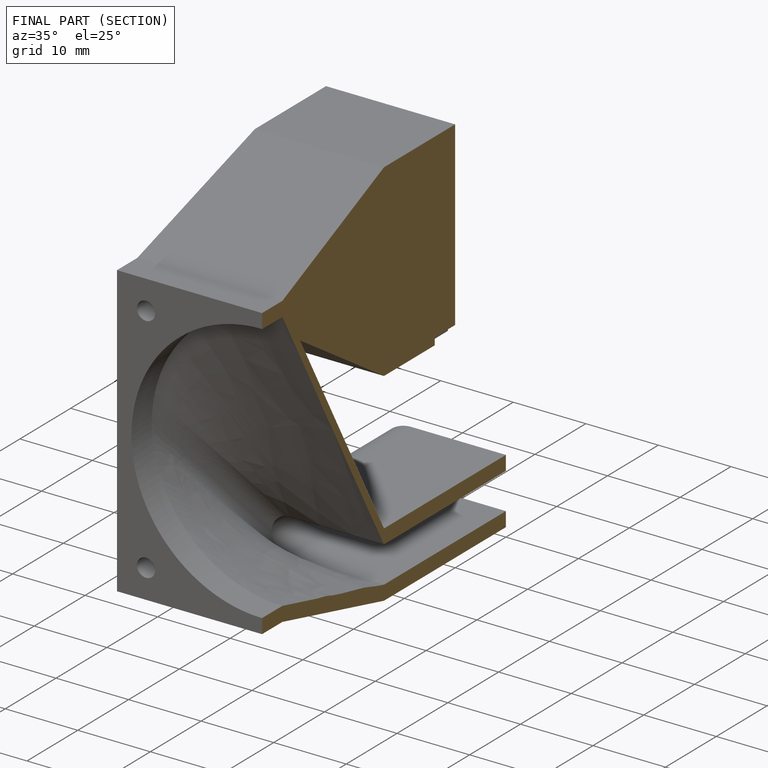
[diagram: finished part — half-section view (interior)]
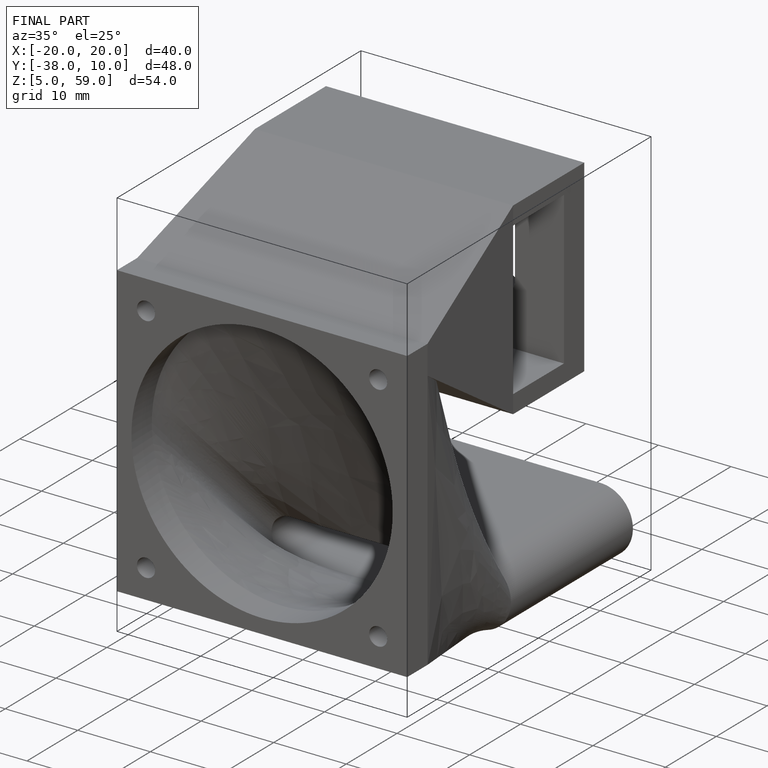
[diagram: finished part — iso view with bounding-box wireframe]
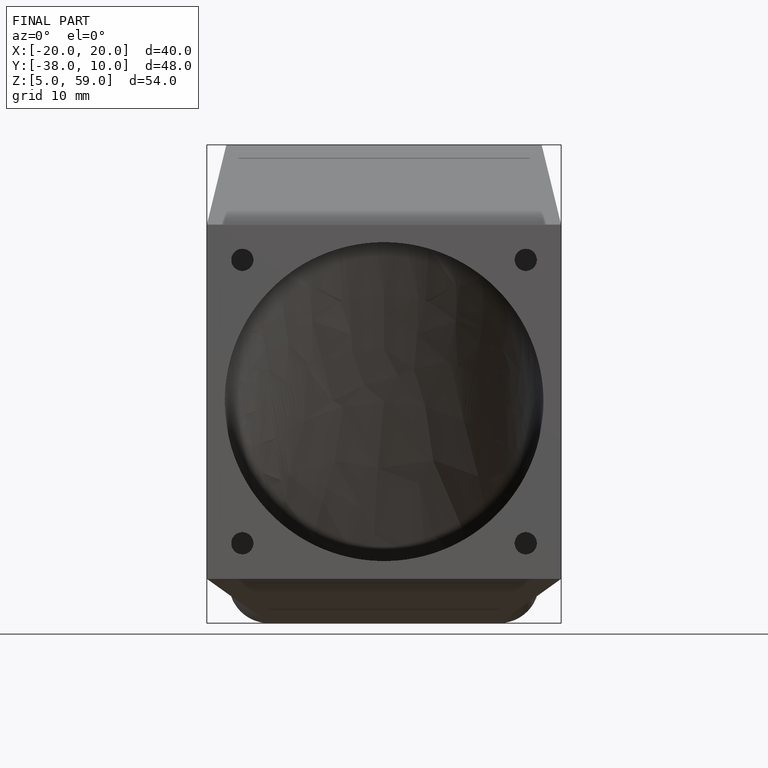
[diagram: finished part — front view with bounding-box wireframe]
